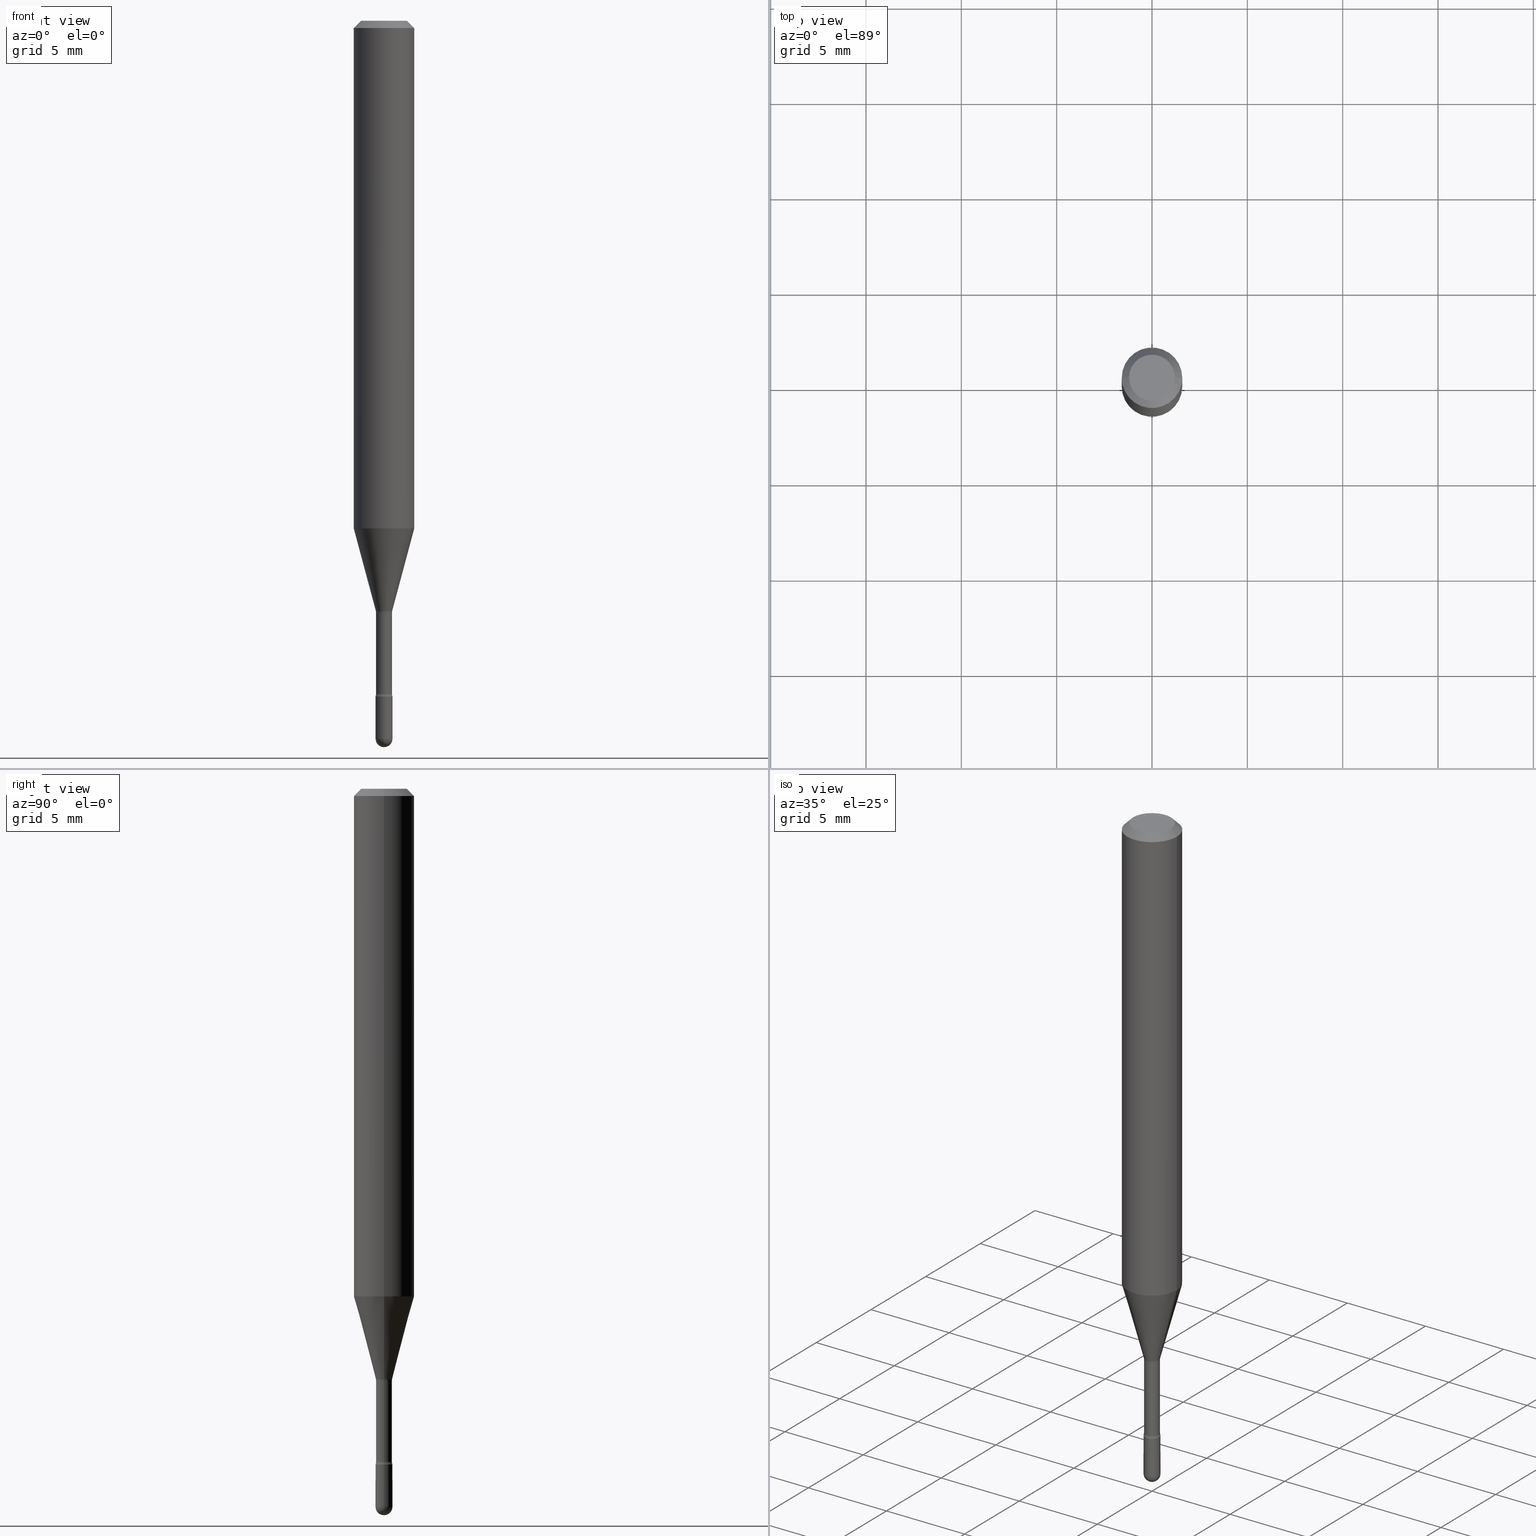
[diagram: canonical four-view strip — front | top / right | iso, engineering-drawing reading convention]
A machine part, canonical four-view strip (front | top / right | iso — engineering-drawing reading convention). The complete STEP part file that produces these views, byte-faithful:
ISO-10303-21;
HEADER;
FILE_DESCRIPTION (( 'STEP AP203' ),
    '1' );
FILE_NAME ('09797.STEP',
    '2024-04-10T01:27:53',
    ( '' ),
    ( '' ),
    'SwSTEP 2.0',
    'SolidWorks 2023',
    '' );
FILE_SCHEMA (( 'CONFIG_CONTROL_DESIGN' ));
ENDSEC;

DATA;
#1 = CARTESIAN_POINT ( 'NONE',  ( 0.04749999999999999362, -4.035134999187581581E-16, -8.274703207154280181E-17 ) ) ;
#2 = ADVANCED_FACE ( 'NONE', ( #327 ), #126, .T. ) ;
#3 = APPROVAL_PERSON_ORGANIZATION ( #79, #436, #36 ) ;
#4 = CC_DESIGN_PERSON_AND_ORGANIZATION_ASSIGNMENT ( #212, #561, ( #183 ) ) ;
#5 = DIRECTION ( 'NONE',  ( 2.438088387897960049E-29, -3.491481338843145188E-15, -1.000000000000000000 ) ) ;
#6 = ORIENTED_EDGE ( 'NONE', *, *, #226, .T. ) ;
#7 = DIRECTION ( 'NONE',  ( -2.445468806185136597E-29, 3.491481338843145583E-15, 1.000000000000000000 ) ) ;
#8 = EDGE_LOOP ( 'NONE', ( #312, #129, #94, #104 ) ) ;
#9 = ADVANCED_FACE ( 'NONE', ( #516 ), #432, .F. ) ;
#10 = DIRECTION ( 'NONE',  ( 2.445468806185136597E-29, -3.491481338843145583E-15, -1.000000000000000000 ) ) ;
#11 = DESIGN_CONTEXT ( 'detailed design', #237, 'design' ) ;
#12 = ORIENTED_EDGE ( 'NONE', *, *, #66, .F. ) ;
#13 = CC_DESIGN_DATE_AND_TIME_ASSIGNMENT ( #210, #386, ( #507 ) ) ;
#14 = CIRCLE ( 'NONE', #308, 0.01750000000000000860 ) ;
#15 = CARTESIAN_POINT ( 'NONE',  ( -1.169113584055446105E-44, 1.669184350826100908E-30, 4.780733988912460139E-16 ) ) ;
#16 = CIRCLE ( 'NONE', #33, 0.01645000000000006180 ) ;
#17 = ORIENTED_EDGE ( 'NONE', *, *, #75, .T. ) ;
#18 = VERTEX_POINT ( 'NONE', #111 ) ;
#19 = DIRECTION ( 'NONE',  ( -2.445468806185136597E-29, 3.491481338843145583E-15, 1.000000000000000000 ) ) ;
#20 = VERTEX_POINT ( 'NONE', #65 ) ;
#21 = CARTESIAN_POINT ( 'NONE',  ( -0.01750000000000000167, 1.243449787580175444E-16, -8.608136407946085539E-31 ) ) ;
#22 = AXIS2_PLACEMENT_3D ( 'NONE', #482, #520, #392 ) ;
#23 = ORIENTED_EDGE ( 'NONE', *, *, #535, .F. ) ;
#24 = VECTOR ( 'NONE', #446, 39.37007874015748143 ) ;
#25 = DIRECTION ( 'NONE',  ( -2.445468806185136597E-29, 3.491481338843145583E-15, 1.000000000000000000 ) ) ;
#26 = DIRECTION ( 'NONE',  ( -2.445468806185136597E-29, 3.491481338843145583E-15, 1.000000000000000000 ) ) ;
#27 = DIRECTION ( 'NONE',  ( 1.000000000000000000, -6.982962677686267499E-15, 4.884662768193073002E-29 ) ) ;
#28 = CARTESIAN_POINT ( 'NONE',  ( -0.01644999999999999588, -4.442050083282912948E-15, -1.221974787463810941 ) ) ;
#29 = ADVANCED_FACE ( 'NONE', ( #411 ), #325, .T. ) ;
#30 = CC_DESIGN_DATE_AND_TIME_ASSIGNMENT ( #176, #345, ( #371 ) ) ;
#31 = ORIENTED_EDGE ( 'NONE', *, *, #46, .T. ) ;
#32 = AXIS2_PLACEMENT_3D ( 'NONE', #192, #93, #57 ) ;
#33 = AXIS2_PLACEMENT_3D ( 'NONE', #74, #64, #508 ) ;
#34 = CALENDAR_DATE ( 2024, 9, 4 ) ;
#35 = DIRECTION ( 'NONE',  ( -2.445468806185136877E-29, 3.491481338843145188E-15, 1.000000000000000000 ) ) ;
#36 = APPROVAL_ROLE ( '' ) ;
#37 = DIRECTION ( 'NONE',  ( -2.445468806185136597E-29, 3.491481338843145583E-15, 1.000000000000000000 ) ) ;
#38 = CALENDAR_DATE ( 2024, 9, 4 ) ;
#39 = CYLINDRICAL_SURFACE ( 'NONE', #116, 0.06250000000000000000 ) ;
#40 = ORIENTED_EDGE ( 'NONE', *, *, #481, .T. ) ;
#41 = AXIS2_PLACEMENT_3D ( 'NONE', #220, #525, #523 ) ;
#42 = AXIS2_PLACEMENT_3D ( 'NONE', #468, #120, #553 ) ;
#43 = FACE_OUTER_BOUND ( 'NONE', #230, .T. ) ;
#44 = CARTESIAN_POINT ( 'NONE',  ( 3.668203209277725232E-31, -5.237222008264747365E-17, -0.01500000000000008271 ) ) ;
#45 = ORIENTED_EDGE ( 'NONE', *, *, #555, .T. ) ;
#46 = EDGE_CURVE ( 'NONE', #58, #235, #546, .T. ) ;
#47 = CYLINDRICAL_SURFACE ( 'NONE', #343, 0.06250000000000000000 ) ;
#48 = ORIENTED_EDGE ( 'NONE', *, *, #359, .T. ) ;
#49 = CIRCLE ( 'NONE', #370, 0.01750000000000000167 ) ;
#50 = CIRCLE ( 'NONE', #233, 0.01499999999999995955 ) ;
#51 = CARTESIAN_POINT ( 'NONE',  ( 3.625407505169465251E-29, -5.176121084834963974E-15, -1.482500000000000151 ) ) ;
#52 = EDGE_LOOP ( 'NONE', ( #140, #383, #17, #396 ) ) ;
#53 = EDGE_CURVE ( 'NONE', #73, #228, #189, .T. ) ;
#54 = LINE ( 'NONE', #489, #512 ) ;
#55 = EDGE_CURVE ( 'NONE', #409, #119, #154, .T. ) ;
#56 = ORIENTED_EDGE ( 'NONE', *, *, #215, .T. ) ;
#57 = DIRECTION ( 'NONE',  ( -1.000000000000000000, 7.105427357600996337E-15, 0.000000000000000000 ) ) ;
#58 = VERTEX_POINT ( 'NONE', #28 ) ;
#59 = CIRCLE ( 'NONE', #32, 0.01499999999999998904 ) ;
#60 = FACE_OUTER_BOUND ( 'NONE', #263, .T. ) ;
#61 = VECTOR ( 'NONE', #115, 39.37007874015748143 ) ;
#62 = EDGE_CURVE ( 'NONE', #73, #235, #521, .T. ) ;
#63 = ORIENTED_EDGE ( 'NONE', *, *, #350, .T. ) ;
#64 = DIRECTION ( 'NONE',  ( -2.445468806185136597E-29, 3.491481338843145583E-15, 1.000000000000000000 ) ) ;
#65 = CARTESIAN_POINT ( 'NONE',  ( -0.06250000000000000000, -3.215468759739966983E-15, -1.048139060311453319 ) ) ;
#66 = EDGE_CURVE ( 'NONE', #153, #488, #443, .T. ) ;
#67 = CARTESIAN_POINT ( 'NONE',  ( -1.243449787579813061E-16, -0.01750000000000518155, -1.482500000000000151 ) ) ;
#68 = DIRECTION ( 'NONE',  ( 1.000000000000000000, -6.982962677686254089E-15, 0.000000000000000000 ) ) ;
#69 = DIMENSIONAL_EXPONENTS ( 1.000000000000000000, 0.000000000000000000, 0.000000000000000000, 0.000000000000000000, 0.000000000000000000, 0.000000000000000000, 0.000000000000000000 ) ;
#70 = DIRECTION ( 'NONE',  ( -2.445468806185136877E-29, 3.491481338843145188E-15, 1.000000000000000000 ) ) ;
#71 = CIRCLE ( 'NONE', #483, 0.06250000000000000000 ) ;
#72 = AXIS2_PLACEMENT_3D ( 'NONE', #339, #168, #484 ) ;
#73 = VERTEX_POINT ( 'NONE', #486 ) ;
#74 = CARTESIAN_POINT ( 'NONE',  ( 3.397946154556677144E-29, -4.851366559664184684E-15, -1.389486607215153491 ) ) ;
#75 = EDGE_CURVE ( 'NONE', #544, #413, #208, .T. ) ;
#76 = ORIENTED_EDGE ( 'NONE', *, *, #53, .F. ) ;
#77 = FACE_OUTER_BOUND ( 'NONE', #355, .T. ) ;
#78 = DIRECTION ( 'NONE',  ( 2.445468806185136597E-29, -3.491481338843145583E-15, -1.000000000000000000 ) ) ;
#79 = PERSON_AND_ORGANIZATION ( #139, #272 ) ;
#80 = FACE_OUTER_BOUND ( 'NONE', #358, .T. ) ;
#81 = APPROVAL_PERSON_ORGANIZATION ( #130, #378, #522 ) ;
#82 = MANIFOLD_SOLID_BREP ( 'Body-Move/Copy2[1]', #135 ) ;
#83 = DIRECTION ( 'NONE',  ( 1.000000000000000000, -6.982962677686266711E-15, 0.000000000000000000 ) ) ;
#84 = APPROVAL_STATUS ( 'not_yet_approved' ) ;
#85 = FACE_OUTER_BOUND ( 'NONE', #245, .T. ) ;
#86 = APPROVAL_ROLE ( '' ) ;
#87 = CARTESIAN_POINT ( 'NONE',  ( 0.01645000000000006180, -4.966236295712124352E-15, -1.389486607215153491 ) ) ;
#88 = AXIS2_PLACEMENT_3D ( 'NONE', #379, #25, #292 ) ;
#89 = CARTESIAN_POINT ( 'NONE',  ( -0.04749999999999999362, 3.578768372314208041E-16, -8.274703207154778150E-17 ) ) ;
#90 = ADVANCED_FACE ( 'NONE', ( #43 ), #414, .T. ) ;
#91 = DIRECTION ( 'NONE',  ( -1.000000000000000000, 6.982962677686266711E-15, 0.000000000000000000 ) ) ;
#92 = ORIENTED_EDGE ( 'NONE', *, *, #359, .F. ) ;
#93 = DIRECTION ( 'NONE',  ( 7.105427357601001859E-15, 1.000000000000000000, -3.491481338843145583E-15 ) ) ;
#94 = ORIENTED_EDGE ( 'NONE', *, *, #206, .F. ) ;
#95 = ADVANCED_FACE ( 'NONE', ( #258 ), #435, .T. ) ;
#96 = AXIS2_PLACEMENT_3D ( 'NONE', #330, #201, #509 ) ;
#97 = AXIS2_PLACEMENT_3D ( 'NONE', #442, #7, #186 ) ;
#98 = DIRECTION ( 'NONE',  ( -7.105427357601001859E-15, -1.000000000000000000, 0.000000000000000000 ) ) ;
#99 = ORIENTED_EDGE ( 'NONE', *, *, #350, .F. ) ;
#100 = EDGE_CURVE ( 'NONE', #409, #544, #518, .T. ) ;
#101 = CARTESIAN_POINT ( 'NONE',  ( 3.316907271900976096E-16, 0.04749999999999999362, 3.181781981480094004E-17 ) ) ;
#102 = ORIENTED_EDGE ( 'NONE', *, *, #476, .T. ) ;
#103 = FACE_OUTER_BOUND ( 'NONE', #270, .T. ) ;
#104 = ORIENTED_EDGE ( 'NONE', *, *, #555, .F. ) ;
#105 = CC_DESIGN_SECURITY_CLASSIFICATION ( #371, ( #183 ) ) ;
#106 = AXIS2_PLACEMENT_3D ( 'NONE', #289, #26, #203 ) ;
#107 = LINE ( 'NONE', #408, #444 ) ;
#108 = CONICAL_SURFACE ( 'NONE', #465, 0.06250000000000000000, 0.7853981633974483900 ) ;
#109 = ORIENTED_EDGE ( 'NONE', *, *, #461, .F. ) ;
#110 = DIRECTION ( 'NONE',  ( 1.000000000000000000, -6.982962677686248567E-15, 0.000000000000000000 ) ) ;
#111 = CARTESIAN_POINT ( 'NONE',  ( 0.01750000000000000513, -5.145570623120085689E-15, -1.482500000000000151 ) ) ;
#112 = DIRECTION ( 'NONE',  ( -2.445468806185136597E-29, 3.491481338843145583E-15, 1.000000000000000000 ) ) ;
#113 = EDGE_LOOP ( 'NONE', ( #92, #12, #257, #404 ) ) ;
#114 = EDGE_CURVE ( 'NONE', #73, #440, #387, .T. ) ;
#115 = DIRECTION ( 'NONE',  ( -2.445468806185136877E-29, 3.491481338843145188E-15, 1.000000000000000000 ) ) ;
#116 = AXIS2_PLACEMENT_3D ( 'NONE', #216, #390, #177 ) ;
#117 = CIRCLE ( 'NONE', #398, 0.01750000000000000860 ) ;
#118 = DIRECTION ( 'NONE',  ( 1.000000000000000000, -6.982962677686273021E-15, 0.000000000000000000 ) ) ;
#119 = VERTEX_POINT ( 'NONE', #89 ) ;
#120 = DIRECTION ( 'NONE',  ( -1.000000000000000000, 6.982962677686265922E-15, -4.883557194083112340E-29 ) ) ;
#121 = ORIENTED_EDGE ( 'NONE', *, *, #527, .F. ) ;
#122 = CARTESIAN_POINT ( 'NONE',  ( 0.01696111260566397425, -4.371386055272411165E-15, -1.218092501787273241 ) ) ;
#123 = CC_DESIGN_PERSON_AND_ORGANIZATION_ASSIGNMENT ( #301, #477, ( #371 ) ) ;
#124 = APPROVAL_DATE_TIME ( #519, #378 ) ;
#125 = DIRECTION ( 'NONE',  ( -2.445468806185136597E-29, 3.491481338843145583E-15, 1.000000000000000000 ) ) ;
#126 = CONICAL_SURFACE ( 'NONE', #406, 0.01696111260566397425, 0.2617993877991496299 ) ;
#127 = SECURITY_CLASSIFICATION_LEVEL ( 'unclassified' ) ;
#128 = DIRECTION ( 'NONE',  ( -2.445468806185136597E-29, 3.491481338843145583E-15, 1.000000000000000000 ) ) ;
#129 = ORIENTED_EDGE ( 'NONE', *, *, #317, .T. ) ;
#130 = PERSON_AND_ORGANIZATION ( #139, #272 ) ;
#131 = LINE ( 'NONE', #300, #198 ) ;
#132 = PERSON_AND_ORGANIZATION ( #139, #272 ) ;
#133 = EDGE_CURVE ( 'NONE', #20, #440, #290, .T. ) ;
#134 = DIRECTION ( 'NONE',  ( 1.000000000000000000, -6.982962677686265922E-15, 4.876176775795936353E-29 ) ) ;
#135 = CLOSED_SHELL ( 'NONE', ( #496, #452, #150, #179, #95 ) ) ;
#136 = CARTESIAN_POINT ( 'NONE',  ( -0.06250000000000000000, 4.440892098500642925E-16, 4.780733988912429571E-16 ) ) ;
#137 = APPROVAL_DATE_TIME ( #363, #255 ) ;
#138 = FACE_OUTER_BOUND ( 'NONE', #113, .T. ) ;
#139 = PERSON ( 'UNSPECIFIED', 'UNSPECIFIED', 'UNSPECIFIED', ('UNSPECIFIED'), ('UNSPECIFIED'), ('UNSPECIFIED') ) ;
#140 = ORIENTED_EDGE ( 'NONE', *, *, #55, .F. ) ;
#141 = SHAPE_DEFINITION_REPRESENTATION ( #266, #329 ) ;
#142 = DIRECTION ( 'NONE',  ( -1.000000000000000000, 7.105427357601001070E-15, -4.926315508542082329E-29 ) ) ;
#143 = ORIENTED_EDGE ( 'NONE', *, *, #376, .T. ) ;
#144 = AXIS2_PLACEMENT_3D ( 'NONE', #253, #128, #134 ) ;
#145 = CC_DESIGN_APPROVAL ( #378, ( #507 ) ) ;
#146 = CARTESIAN_POINT ( 'NONE',  ( 0.01750000000000000167, -4.992818314545698211E-15, -1.395000000000000018 ) ) ;
#147 = ORIENTED_EDGE ( 'NONE', *, *, #501, .T. ) ;
#148 = DIRECTION ( 'NONE',  ( 7.105427357601001859E-15, 1.000000000000000000, -3.491481338843145583E-15 ) ) ;
#149 = ORIENTED_EDGE ( 'NONE', *, *, #455, .T. ) ;
#150 = ADVANCED_FACE ( 'NONE', ( #560 ), #298, .T. ) ;
#151 = DIRECTION ( 'NONE',  ( -2.445468806185136877E-29, 3.491481338843145188E-15, 1.000000000000000000 ) ) ;
#152 = PRODUCT_RELATED_PRODUCT_CATEGORY ( 'detail', '', ( #373 ) ) ;
#153 = VERTEX_POINT ( 'NONE', #87 ) ;
#154 = CIRCLE ( 'NONE', #106, 0.04749999999999999362 ) ;
#155 = CARTESIAN_POINT ( 'NONE',  ( 2.988301224687461483E-29, -4.266502166966714459E-15, -1.221974787463810941 ) ) ;
#156 = AXIS2_PLACEMENT_3D ( 'NONE', #246, #194, #515 ) ;
#157 = EDGE_LOOP ( 'NONE', ( #450, #547, #503, #56 ) ) ;
#158 = CARTESIAN_POINT ( 'NONE',  ( 3.397946154556677144E-29, -4.851366559664184684E-15, -1.389486607215153491 ) ) ;
#159 = ORIENTED_EDGE ( 'NONE', *, *, #219, .T. ) ;
#160 = DIRECTION ( 'NONE',  ( 1.000000000000000000, -6.982962677686248567E-15, 0.000000000000000000 ) ) ;
#161 = CARTESIAN_POINT ( 'NONE',  ( 3.668203209277725232E-31, -5.237222008264747365E-17, -0.01500000000000008271 ) ) ;
#162 = EDGE_LOOP ( 'NONE', ( #63, #495 ) ) ;
#163 = DIRECTION ( 'NONE',  ( -2.445468806185136877E-29, 3.491481338843145188E-15, 1.000000000000000000 ) ) ;
#164 = TOROIDAL_SURFACE ( 'NONE', #473, 0.03144999999999999185, 0.01499999999999998904 ) ;
#165 = AXIS2_PLACEMENT_3D ( 'NONE', #545, #326, #505 ) ;
#166 = ORIENTED_EDGE ( 'NONE', *, *, #55, .T. ) ;
#167 = CARTESIAN_POINT ( 'NONE',  ( 3.668203209277725232E-31, -5.237222008264747365E-17, -0.01500000000000008271 ) ) ;
#168 = DIRECTION ( 'NONE',  ( 0.000000000000000000, 0.000000000000000000, 1.000000000000000000 ) ) ;
#169 = ADVANCED_FACE ( 'NONE', ( #80 ), #164, .F. ) ;
#170 = DIRECTION ( 'NONE',  ( 1.000000000000000000, -6.982962677686266711E-15, 0.000000000000000000 ) ) ;
#171 = PERSON_AND_ORGANIZATION_ROLE ( 'design_supplier' ) ;
#172 = DIRECTION ( 'NONE',  ( 1.000000000000000000, -6.982962677686248567E-15, 0.000000000000000000 ) ) ;
#173 = AXIS2_PLACEMENT_3D ( 'NONE', #558, #238, #506 ) ;
#174 = TOROIDAL_SURFACE ( 'NONE', #528, 0.03145000000000002655, 0.01499999999999996128 ) ;
#175 = CIRCLE ( 'NONE', #316, 0.01750000000000000167 ) ;
#176 = DATE_AND_TIME ( #38, #335 ) ;
#177 = DIRECTION ( 'NONE',  ( 1.000000000000000000, -6.982962677686266711E-15, 4.852736867747366207E-29 ) ) ;
#178 = EDGE_CURVE ( 'NONE', #488, #58, #131, .T. ) ;
#179 = ADVANCED_FACE ( 'NONE', ( #564 ), #562, .T. ) ;
#180 = DIRECTION ( 'NONE',  ( 1.000000000000000000, -6.982962677686248567E-15, 0.000000000000000000 ) ) ;
#181 = FACE_OUTER_BOUND ( 'NONE', #540, .T. ) ;
#182 = AXIS2_PLACEMENT_3D ( 'NONE', #167, #305, #170 ) ;
#183 = PRODUCT_DEFINITION_FORMATION_WITH_SPECIFIED_SOURCE ( 'ANY', '', #373, .NOT_KNOWN. ) ;
#184 = CARTESIAN_POINT ( 'NONE',  ( -0.01750000000000000167, -4.899023797502559247E-15, -1.395000000000000018 ) ) ;
#185 = ORIENTED_EDGE ( 'NONE', *, *, #393, .F. ) ;
#186 = DIRECTION ( 'NONE',  ( 1.000000000000000000, -6.982962677686275388E-15, 4.883557194083115704E-29 ) ) ;
#187 = ORIENTED_EDGE ( 'NONE', *, *, #479, .T. ) ;
#188 = ORIENTED_EDGE ( 'NONE', *, *, #178, .T. ) ;
#189 = CIRCLE ( 'NONE', #96, 0.01696111260566397425 ) ;
#190 = VECTOR ( 'NONE', #451, 39.37007874015748143 ) ;
#191 = CALENDAR_DATE ( 2024, 9, 4 ) ;
#192 = CARTESIAN_POINT ( 'NONE',  ( -0.03144999999999999185, -4.043036476570163107E-15, -1.221974787463810941 ) ) ;
#193 = EDGE_LOOP ( 'NONE', ( #369, #102, #499, #407 ) ) ;
#194 = DIRECTION ( 'NONE',  ( -2.445468806185136597E-29, 3.491481338843145583E-15, 1.000000000000000000 ) ) ;
#195 = EDGE_LOOP ( 'NONE', ( #6, #551, #99, #463, #365 ) ) ;
#196 = FACE_OUTER_BOUND ( 'NONE', #399, .T. ) ;
#197 = EDGE_LOOP ( 'NONE', ( #121, #322, #31, #366 ) ) ;
#198 = VECTOR ( 'NONE', #35, 39.37007874015748143 ) ;
#199 = LINE ( 'NONE', #334, #200 ) ;
#200 = VECTOR ( 'NONE', #151, 39.37007874015748143 ) ;
#201 = DIRECTION ( 'NONE',  ( -2.445468806185136597E-29, 3.491481338843145583E-15, 1.000000000000000000 ) ) ;
#202 = CARTESIAN_POINT ( 'NONE',  ( 2.978807216168789301E-29, -4.252947238975025450E-15, -1.218092501787273241 ) ) ;
#203 = DIRECTION ( 'NONE',  ( 1.000000000000000000, -6.982962677686267499E-15, 4.884662768193073002E-29 ) ) ;
#204 = DIRECTION ( 'NONE',  ( 1.000000000000000000, -6.982962677686275388E-15, 4.883557194083115704E-29 ) ) ;
#205 = ORIENTED_EDGE ( 'NONE', *, *, #215, .F. ) ;
#206 = EDGE_CURVE ( 'NONE', #18, #319, #314, .T. ) ;
#207 = LENGTH_MEASURE_WITH_UNIT ( LENGTH_MEASURE( 0.02539999999999999897 ), #391 );
#208 = CIRCLE ( 'NONE', #182, 0.06250000000000000000 ) ;
#209 = DIRECTION ( 'NONE',  ( -2.445468806185136597E-29, 3.491481338843145583E-15, 1.000000000000000000 ) ) ;
#210 = DATE_AND_TIME ( #557, #353 ) ;
#211 = CARTESIAN_POINT ( 'NONE',  ( 3.625407505169465251E-29, -5.176121084834963974E-15, -1.482500000000000151 ) ) ;
#212 = PERSON_AND_ORGANIZATION ( #139, #272 ) ;
#213 = DIRECTION ( 'NONE',  ( 0.2588190451025209615, 1.565188264969624926E-15, 0.9659258262890682012 ) ) ;
#214 = COORDINATED_UNIVERSAL_TIME_OFFSET ( 5, 0, .BEHIND. ) ;
#215 = EDGE_CURVE ( 'NONE', #413, #544, #71, .T. ) ;
#216 = CARTESIAN_POINT ( 'NONE',  ( -1.169113584055446105E-44, 1.669184350826100908E-30, 4.780733988912460139E-16 ) ) ;
#217 = AXIS2_PLACEMENT_3D ( 'NONE', #211, #526, #221 ) ;
#218 = AXIS2_PLACEMENT_3D ( 'NONE', #466, #19, #27 ) ;
#219 = EDGE_CURVE ( 'NONE', #295, #423, #49, .T. ) ;
#220 = CARTESIAN_POINT ( 'NONE',  ( 2.563191376535860967E-29, -3.659557969590029993E-15, -1.048139060311453319 ) ) ;
#221 = DIRECTION ( 'NONE',  ( 6.982962677686265922E-15, 1.000000000000000000, 0.000000000000000000 ) ) ;
#222 = CARTESIAN_POINT ( 'NONE',  ( 3.411428984628265351E-29, -4.870616467686188228E-15, -1.395000000000000018 ) ) ;
#223 = EDGE_LOOP ( 'NONE', ( #23, #276, #45, #187, #324 ) ) ;
#224 = AXIS2_PLACEMENT_3D ( 'NONE', #293, #467, #437 ) ;
#225 = CC_DESIGN_APPROVAL ( #436, ( #183 ) ) ;
#226 = EDGE_CURVE ( 'NONE', #319, #249, #282, .T. ) ;
#227 = DIRECTION ( 'NONE',  ( 6.982962677686265922E-15, 1.000000000000000000, 0.000000000000000000 ) ) ;
#228 = VERTEX_POINT ( 'NONE', #302 ) ;
#229 = CARTESIAN_POINT ( 'NONE',  ( -0.03145000000000002655, -4.627900869267633332E-15, -1.389486607215153491 ) ) ;
#230 = EDGE_LOOP ( 'NONE', ( #532, #514, #377, #303 ) ) ;
#231 = CARTESIAN_POINT ( 'NONE',  ( 1.222018468595459501E-16, 0.01749999999999483219, -1.482500000000000151 ) ) ;
#232 = ORIENTED_EDGE ( 'NONE', *, *, #317, .F. ) ;
#233 = AXIS2_PLACEMENT_3D ( 'NONE', #229, #148, #364 ) ;
#234 = PLANE ( 'NONE',  #539 ) ;
#235 = VERTEX_POINT ( 'NONE', #478 ) ;
#236 = CYLINDRICAL_SURFACE ( 'NONE', #416, 0.01750000000000000167 ) ;
#237 = APPLICATION_CONTEXT ( 'configuration controlled 3d designs of mechanical parts and assemblies' ) ;
#238 = DIRECTION ( 'NONE',  ( -2.445468806185136597E-29, 3.491481338843145583E-15, 1.000000000000000000 ) ) ;
#239 = CARTESIAN_POINT ( 'NONE',  ( 0.06250000000000000000, -4.888073874380391431E-16, -0.01500000000000008271 ) ) ;
#240 = ORIENTED_EDGE ( 'NONE', *, *, #133, .F. ) ;
#241 = AXIS2_PLACEMENT_3D ( 'NONE', #161, #78, #247 ) ;
#242 = AXIS2_PLACEMENT_3D ( 'NONE', #244, #552, #160 ) ;
#243 = ADVANCED_FACE ( 'NONE', ( #85 ), #39, .T. ) ;
#244 = CARTESIAN_POINT ( 'NONE',  ( 3.625407505169465251E-29, -5.176121084834963974E-15, -1.482500000000000151 ) ) ;
#245 = EDGE_LOOP ( 'NONE', ( #493, #447, #147, #205 ) ) ;
#246 = CARTESIAN_POINT ( 'NONE',  ( 2.563191376535860967E-29, -3.659557969590029993E-15, -1.048139060311453319 ) ) ;
#247 = DIRECTION ( 'NONE',  ( -1.000000000000000000, 6.982962677686266711E-15, 0.000000000000000000 ) ) ;
#248 = PERSON_AND_ORGANIZATION ( #139, #272 ) ;
#249 = VERTEX_POINT ( 'NONE', #346 ) ;
#250 = CC_DESIGN_PERSON_AND_ORGANIZATION_ASSIGNMENT ( #563, #171, ( #183 ) ) ;
#251 = COORDINATED_UNIVERSAL_TIME_OFFSET ( 5, 0, .BEHIND. ) ;
#252 = AXIS2_PLACEMENT_3D ( 'NONE', #202, #323, #412 ) ;
#253 = CARTESIAN_POINT ( 'NONE',  ( 0.000000000000000000, 0.000000000000000000, 0.000000000000000000 ) ) ;
#254 = COORDINATED_UNIVERSAL_TIME_OFFSET ( 5, 0, .BEHIND. ) ;
#255 = APPROVAL ( #480, 'UNSPECIFIED' ) ;
#256 = DIRECTION ( 'NONE',  ( -2.445468806185136597E-29, 3.491481338843145583E-15, 1.000000000000000000 ) ) ;
#257 = ORIENTED_EDGE ( 'NONE', *, *, #448, .T. ) ;
#258 = FACE_OUTER_BOUND ( 'NONE', #223, .T. ) ;
#259 = AXIS2_PLACEMENT_3D ( 'NONE', #15, #321, #529 ) ;
#260 = CIRCLE ( 'NONE', #156, 0.06250000000000000000 ) ;
#261 = CARTESIAN_POINT ( 'NONE',  ( 2.988301224687461483E-29, -4.266502166966715248E-15, -1.221974787463810941 ) ) ;
#262 = UNCERTAINTY_MEASURE_WITH_UNIT (LENGTH_MEASURE( 1.000000000000000082E-05 ), #426, 'distance_accuracy_value', 'NONE');
#263 = EDGE_LOOP ( 'NONE', ( #536, #281 ) ) ;
#264 = MANIFOLD_SOLID_BREP ( 'Body-Move/Copy2[2]', #341 ) ;
#265 = CYLINDRICAL_SURFACE ( 'NONE', #259, 0.01645000000000003057 ) ;
#266 = PRODUCT_DEFINITION_SHAPE ( 'NONE', 'NONE',  #507 ) ;
#267 = ORIENTED_EDGE ( 'NONE', *, *, #226, .F. ) ;
#268 = CC_DESIGN_PERSON_AND_ORGANIZATION_ASSIGNMENT ( #248, #471, ( #373 ) ) ;
#269 = PLANE ( 'NONE',  #291 ) ;
#270 = EDGE_LOOP ( 'NONE', ( #315, #188, #109, #453 ) ) ;
#271 = VECTOR ( 'NONE', #213, 39.37007874015748143 ) ;
#272 = ORGANIZATION ( 'UNSPECIFIED', 'UNSPECIFIED', '' ) ;
#273 = APPROVAL_PERSON_ORGANIZATION ( #304, #255, #86 ) ;
#274 = COORDINATED_UNIVERSAL_TIME_OFFSET ( 5, 0, .BEHIND. ) ;
#275 = FACE_OUTER_BOUND ( 'NONE', #157, .T. ) ;
#276 = ORIENTED_EDGE ( 'NONE', *, *, #533, .T. ) ;
#277 = ADVANCED_FACE ( 'NONE', ( #103 ), #265, .T. ) ;
#278 = DIRECTION ( 'NONE',  ( 1.000000000000000000, -6.982962677686287221E-15, 0.000000000000000000 ) ) ;
#279 = ORIENTED_EDGE ( 'NONE', *, *, #75, .F. ) ;
#280 = DIRECTION ( 'NONE',  ( -2.445468806185136597E-29, 3.491481338843145583E-15, 1.000000000000000000 ) ) ;
#281 = ORIENTED_EDGE ( 'NONE', *, *, #219, .F. ) ;
#282 = CIRCLE ( 'NONE', #537, 0.01750000000000000167 ) ;
#283 = LOCAL_TIME ( 21, 27, 53.00000000000000000, #214 ) ;
#284 = DIRECTION ( 'NONE',  ( 1.000000000000000000, -6.982962677686248567E-15, 0.000000000000000000 ) ) ;
#285 = CARTESIAN_POINT ( 'NONE',  ( 2.978807216168789301E-29, -4.252947238975025450E-15, -1.218092501787273241 ) ) ;
#286 = LINE ( 'NONE', #21, #485 ) ;
#287 = CARTESIAN_POINT ( 'NONE',  ( 2.988301224687461483E-29, -4.266502166966714459E-15, -1.221974787463810941 ) ) ;
#288 = CARTESIAN_POINT ( 'NONE',  ( 0.000000000000000000, 0.000000000000000000, 0.000000000000000000 ) ) ;
#289 = CARTESIAN_POINT ( 'NONE',  ( 2.023552857353652888E-45, -2.889097183224559242E-31, -8.274703207154537794E-17 ) ) ;
#290 = CIRCLE ( 'NONE', #41, 0.06250000000000000000 ) ;
#291 = AXIS2_PLACEMENT_3D ( 'NONE', #101, #5, #354 ) ;
#292 = DIRECTION ( 'NONE',  ( 1.000000000000000000, -6.982962677686248567E-15, 0.000000000000000000 ) ) ;
#293 = CARTESIAN_POINT ( 'NONE',  ( 3.397946154556677144E-29, -4.851366559664184684E-15, -1.389486607215153491 ) ) ;
#294 = DIRECTION ( 'NONE',  ( -2.445468806185136597E-29, 3.491481338843145583E-15, 1.000000000000000000 ) ) ;
#295 = VERTEX_POINT ( 'NONE', #400 ) ;
#296 = MECHANICAL_CONTEXT ( 'NONE', #402, 'mechanical' ) ;
#297 = EDGE_CURVE ( 'NONE', #119, #413, #54, .T. ) ;
#298 = PLANE ( 'NONE',  #22 ) ;
#299 = COORDINATED_UNIVERSAL_TIME_OFFSET ( 5, 0, .BEHIND. ) ;
#300 = CARTESIAN_POINT ( 'NONE',  ( -0.01645000000000003057, 1.168842800325383741E-16, 4.780733988912453237E-16 ) ) ;
#301 = PERSON_AND_ORGANIZATION ( #139, #272 ) ;
#302 = CARTESIAN_POINT ( 'NONE',  ( -0.01696111260566397425, -3.673950022595677851E-15, -1.218092501787273241 ) ) ;
#303 = ORIENTED_EDGE ( 'NONE', *, *, #114, .F. ) ;
#304 = PERSON_AND_ORGANIZATION ( #139, #272 ) ;
#305 = DIRECTION ( 'NONE',  ( -2.445468806185136597E-29, 3.491481338843145583E-15, 1.000000000000000000 ) ) ;
#306 =( NAMED_UNIT ( * ) PLANE_ANGLE_UNIT ( ) SI_UNIT ( $, .RADIAN. ) );
#307 = CARTESIAN_POINT ( 'NONE',  ( 2.978807216168789301E-29, -4.252947238975025450E-15, -1.218092501787273241 ) ) ;
#308 = AXIS2_PLACEMENT_3D ( 'NONE', #51, #405, #227 ) ;
#309 = CIRCLE ( 'NONE', #242, 0.01750000000000000167 ) ;
#310 = DIRECTION ( 'NONE',  ( 1.000000000000000000, -6.982962677686265922E-15, 4.876176775795935793E-29 ) ) ;
#311 = LINE ( 'NONE', #136, #190 ) ;
#312 = ORIENTED_EDGE ( 'NONE', *, *, #356, .F. ) ;
#313 = CARTESIAN_POINT ( 'NONE',  ( 0.01749999999999997391, -4.992818314545698211E-15, -1.395000000000000018 ) ) ;
#314 = CIRCLE ( 'NONE', #342, 0.01750000000000000167 ) ;
#315 = ORIENTED_EDGE ( 'NONE', *, *, #66, .T. ) ;
#316 = AXIS2_PLACEMENT_3D ( 'NONE', #458, #328, #284 ) ;
#317 = EDGE_CURVE ( 'NONE', #470, #319, #14, .T. ) ;
#318 = CARTESIAN_POINT ( 'NONE',  ( 1.222018468595437807E-16, 0.01749999999999513056, -1.395000000000000018 ) ) ;
#319 = VERTEX_POINT ( 'NONE', #231 ) ;
#320 = EDGE_CURVE ( 'NONE', #228, #58, #59, .T. ) ;
#321 = DIRECTION ( 'NONE',  ( -2.445468806185136597E-29, 3.491481338843145583E-15, 1.000000000000000000 ) ) ;
#322 = ORIENTED_EDGE ( 'NONE', *, *, #320, .T. ) ;
#323 = DIRECTION ( 'NONE',  ( -2.445468806185136597E-29, 3.491481338843145583E-15, 1.000000000000000000 ) ) ;
#324 = ORIENTED_EDGE ( 'NONE', *, *, #460, .F. ) ;
#325 = CONICAL_SURFACE ( 'NONE', #241, 0.06250000000000000000, 0.7853981633974483900 ) ;
#326 = DIRECTION ( 'NONE',  ( -2.445468806185136597E-29, 3.491481338843145583E-15, 1.000000000000000000 ) ) ;
#327 = FACE_OUTER_BOUND ( 'NONE', #445, .T. ) ;
#328 = DIRECTION ( 'NONE',  ( -2.445468806185136597E-29, 3.491481338843145583E-15, 1.000000000000000000 ) ) ;
#329 = ADVANCED_BREP_SHAPE_REPRESENTATION ( '09797', ( #82, #264, #72 ), #454 ) ;
#330 = CARTESIAN_POINT ( 'NONE',  ( 2.978807216168789301E-29, -4.252947238975025450E-15, -1.218092501787273241 ) ) ;
#331 = LINE ( 'NONE', #510, #61 ) ;
#332 = CARTESIAN_POINT ( 'NONE',  ( 0.03144999999999999185, -4.486116343179948285E-15, -1.221974787463810941 ) ) ;
#333 = CIRCLE ( 'NONE', #252, 0.01696111260566397425 ) ;
#334 = CARTESIAN_POINT ( 'NONE',  ( 0.06250000000000000000, -4.364351673553899931E-16, 4.780733988912490708E-16 ) ) ;
#335 = LOCAL_TIME ( 21, 27, 53.00000000000000000, #254 ) ;
#336 = DIRECTION ( 'NONE',  ( 1.000000000000000000, -6.982962677686286432E-15, 0.000000000000000000 ) ) ;
#337 = ORIENTED_EDGE ( 'NONE', *, *, #62, .T. ) ;
#338 = DIRECTION ( 'NONE',  ( 0.7071067811865475727, -7.319954787623256045E-15, -0.7071067811865474617 ) ) ;
#339 = CARTESIAN_POINT ( 'NONE',  ( 0.000000000000000000, 0.000000000000000000, 0.000000000000000000 ) ) ;
#340 = DIRECTION ( 'NONE',  ( 1.000000000000000000, -6.982962677686286432E-15, 0.000000000000000000 ) ) ;
#341 = CLOSED_SHELL ( 'NONE', ( #9, #277, #497, #29, #347, #90, #2, #243, #368, #417, #394, #441, #531, #169 ) ) ;
#342 = AXIS2_PLACEMENT_3D ( 'NONE', #566, #475, #180 ) ;
#343 = AXIS2_PLACEMENT_3D ( 'NONE', #491, #280, #439 ) ;
#344 = CARTESIAN_POINT ( 'NONE',  ( 0.06250000000000000000, -4.811533449433681963E-16, -0.01500000000000008271 ) ) ;
#345 = DATE_TIME_ROLE ( 'classification_date' ) ;
#346 = CARTESIAN_POINT ( 'NONE',  ( -0.01750000000000000513, -4.899023797502559247E-15, -1.482500000000000151 ) ) ;
#347 = ADVANCED_FACE ( 'NONE', ( #534 ), #47, .T. ) ;
#348 = APPLICATION_PROTOCOL_DEFINITION ( 'international standard', 'config_control_design', 1994, #402 ) ;
#349 = CARTESIAN_POINT ( 'NONE',  ( 3.411428984628265351E-29, -4.870616467686188228E-15, -1.395000000000000018 ) ) ;
#350 = EDGE_CURVE ( 'NONE', #361, #380, #362, .T. ) ;
#351 = CC_DESIGN_PERSON_AND_ORGANIZATION_ASSIGNMENT ( #132, #382, ( #507 ) ) ;
#352 = CARTESIAN_POINT ( 'NONE',  ( -0.01696111260566397425, -4.132431285451389114E-15, -1.218092501787273241 ) ) ;
#353 = LOCAL_TIME ( 21, 27, 53.00000000000000000, #299 ) ;
#354 = DIRECTION ( 'NONE',  ( -1.000000000000000000, 6.982962677686265922E-15, -4.876176775795935793E-29 ) ) ;
#355 = EDGE_LOOP ( 'NONE', ( #232, #457, #401, #267 ) ) ;
#356 = EDGE_CURVE ( 'NONE', #470, #542, #117, .T. ) ;
#357 = CARTESIAN_POINT ( 'NONE',  ( 0.03145000000000002655, -5.070980735877417722E-15, -1.389486607215153491 ) ) ;
#358 = EDGE_LOOP ( 'NONE', ( #421, #76, #337, #490 ) ) ;
#359 = EDGE_CURVE ( 'NONE', #488, #295, #50, .T. ) ;
#360 = CARTESIAN_POINT ( 'NONE',  ( 3.625407505169465251E-29, -5.176121084834963974E-15, -1.482500000000000151 ) ) ;
#361 = VERTEX_POINT ( 'NONE', #146 ) ;
#362 = CIRCLE ( 'NONE', #433, 0.01750000000000000167 ) ;
#363 = DATE_AND_TIME ( #191, #549 ) ;
#364 = DIRECTION ( 'NONE',  ( -1.000000000000000000, 7.105427357601009747E-15, 0.000000000000000000 ) ) ;
#365 = ORIENTED_EDGE ( 'NONE', *, *, #206, .T. ) ;
#366 = ORIENTED_EDGE ( 'NONE', *, *, #62, .F. ) ;
#367 = CYLINDRICAL_SURFACE ( 'NONE', #165, 0.01645000000000003057 ) ;
#368 = ADVANCED_FACE ( 'NONE', ( #275 ), #108, .T. ) ;
#369 = ORIENTED_EDGE ( 'NONE', *, *, #178, .F. ) ;
#370 = AXIS2_PLACEMENT_3D ( 'NONE', #349, #256, #429 ) ;
#371 = SECURITY_CLASSIFICATION ( '', '', #127 ) ;
#372 = FACE_OUTER_BOUND ( 'NONE', #195, .T. ) ;
#373 = PRODUCT ( '09797', '09797', '', ( #296 ) ) ;
#374 = ORIENTED_EDGE ( 'NONE', *, *, #476, .F. ) ;
#375 = CARTESIAN_POINT ( 'NONE',  ( 3.625407505169465251E-29, -5.176121084834963974E-15, -1.482500000000000151 ) ) ;
#376 = EDGE_CURVE ( 'NONE', #20, #413, #311, .T. ) ;
#377 = ORIENTED_EDGE ( 'NONE', *, *, #455, .F. ) ;
#378 = APPROVAL ( #84, 'UNSPECIFIED' ) ;
#379 = CARTESIAN_POINT ( 'NONE',  ( 3.411428984628265351E-29, -4.870616467686188228E-15, -1.395000000000000018 ) ) ;
#380 = VERTEX_POINT ( 'NONE', #184 ) ;
#381 = CIRCLE ( 'NONE', #88, 0.01750000000000000167 ) ;
#382 = PERSON_AND_ORGANIZATION_ROLE ( 'creator' ) ;
#383 = ORIENTED_EDGE ( 'NONE', *, *, #100, .T. ) ;
#384 = APPROVAL_DATE_TIME ( #430, #436 ) ;
#385 = DIRECTION ( 'NONE',  ( -2.445468806185136597E-29, 3.491481338843145583E-15, 1.000000000000000000 ) ) ;
#386 = DATE_TIME_ROLE ( 'creation_date' ) ;
#387 = LINE ( 'NONE', #122, #271 ) ;
#388 = AXIS2_PLACEMENT_3D ( 'NONE', #307, #125, #340 ) ;
#389 = AXIS2_PLACEMENT_3D ( 'NONE', #357, #403, #278 ) ;
#390 = DIRECTION ( 'NONE',  ( -2.445468806185136597E-29, 3.491481338843145583E-15, 1.000000000000000000 ) ) ;
#391 =( LENGTH_UNIT ( ) NAMED_UNIT ( * ) SI_UNIT ( $, .METRE. ) );
#392 = DIRECTION ( 'NONE',  ( 1.000000000000000000, -6.982962677686265922E-15, 4.876176775795935793E-29 ) ) ;
#393 = EDGE_CURVE ( 'NONE', #228, #20, #538, .T. ) ;
#394 = ADVANCED_FACE ( 'NONE', ( #60 ), #234, .F. ) ;
#395 = CARTESIAN_POINT ( 'NONE',  ( 3.625407505169465251E-29, -5.176121084834963974E-15, -1.482500000000000151 ) ) ;
#396 = ORIENTED_EDGE ( 'NONE', *, *, #297, .F. ) ;
#397 = CARTESIAN_POINT ( 'NONE',  ( -0.06250000000000000000, -1.411875884986276117E-15, -0.01500000000000008271 ) ) ;
#398 = AXIS2_PLACEMENT_3D ( 'NONE', #360, #142, #98 ) ;
#399 = EDGE_LOOP ( 'NONE', ( #374, #48, #159, #419 ) ) ;
#400 = CARTESIAN_POINT ( 'NONE',  ( -0.01749999999999997391, -4.746271488928170979E-15, -1.395000000000000018 ) ) ;
#401 = ORIENTED_EDGE ( 'NONE', *, *, #533, .F. ) ;
#402 = APPLICATION_CONTEXT ( 'configuration controlled 3d designs of mechanical parts and assemblies' ) ;
#403 = DIRECTION ( 'NONE',  ( -6.982962677686266711E-15, -1.000000000000000000, 3.491481338843145583E-15 ) ) ;
#404 = ORIENTED_EDGE ( 'NONE', *, *, #469, .T. ) ;
#405 = DIRECTION ( 'NONE',  ( 1.000000000000000000, -6.982962677686265922E-15, 4.883557194083112340E-29 ) ) ;
#406 = AXIS2_PLACEMENT_3D ( 'NONE', #285, #209, #336 ) ;
#407 = ORIENTED_EDGE ( 'NONE', *, *, #46, .F. ) ;
#408 = CARTESIAN_POINT ( 'NONE',  ( 0.01750000000000000167, -1.222018468595096625E-16, 8.533309357642889039E-31 ) ) ;
#409 = VERTEX_POINT ( 'NONE', #1 ) ;
#410 = DIRECTION ( 'NONE',  ( 1.000000000000000000, -6.982962677686265922E-15, 4.876176775795936353E-29 ) ) ;
#411 = FACE_OUTER_BOUND ( 'NONE', #52, .T. ) ;
#412 = DIRECTION ( 'NONE',  ( 1.000000000000000000, -6.982962677686286432E-15, 0.000000000000000000 ) ) ;
#413 = VERTEX_POINT ( 'NONE', #397 ) ;
#414 = CONICAL_SURFACE ( 'NONE', #388, 0.01696111260566397425, 0.2617993877991496299 ) ;
#415 = TOROIDAL_SURFACE ( 'NONE', #97, 0.03145000000000002655, 0.01499999999999996128 ) ;
#416 = AXIS2_PLACEMENT_3D ( 'NONE', #288, #294, #410 ) ;
#417 = ADVANCED_FACE ( 'NONE', ( #181 ), #269, .F. ) ;
#418 = DIRECTION ( 'NONE',  ( 1.000000000000000000, -6.982962677686254089E-15, 0.000000000000000000 ) ) ;
#419 = ORIENTED_EDGE ( 'NONE', *, *, #448, .F. ) ;
#420 = SPHERICAL_SURFACE ( 'NONE', #42, 0.01750000000000000860 ) ;
#421 = ORIENTED_EDGE ( 'NONE', *, *, #320, .F. ) ;
#422 = APPLICATION_PROTOCOL_DEFINITION ( 'international standard', 'config_control_design', 1994, #237 ) ;
#423 = VERTEX_POINT ( 'NONE', #313 ) ;
#424 = AXIS2_PLACEMENT_3D ( 'NONE', #332, #511, #118 ) ;
#425 = CIRCLE ( 'NONE', #548, 0.01644999999999999588 ) ;
#426 =( CONVERSION_BASED_UNIT ( 'INCH', #207 ) LENGTH_UNIT ( ) NAMED_UNIT ( #69 ) );
#427 = DIRECTION ( 'NONE',  ( 1.000000000000000000, -6.982962677686275388E-15, 4.883557194083115704E-29 ) ) ;
#428 = APPROVAL_STATUS ( 'not_yet_approved' ) ;
#429 = DIRECTION ( 'NONE',  ( 1.000000000000000000, -6.982962677686248567E-15, 0.000000000000000000 ) ) ;
#430 = DATE_AND_TIME ( #34, #474 ) ;
#431 = ORIENTED_EDGE ( 'NONE', *, *, #501, .F. ) ;
#432 = TOROIDAL_SURFACE ( 'NONE', #173, 0.03144999999999999185, 0.01499999999999998904 ) ;
#433 = AXIS2_PLACEMENT_3D ( 'NONE', #222, #541, #487 ) ;
#434 = CC_DESIGN_APPROVAL ( #255, ( #371 ) ) ;
#435 = CYLINDRICAL_SURFACE ( 'NONE', #144, 0.01750000000000000167 ) ;
#436 = APPROVAL ( #428, 'UNSPECIFIED' ) ;
#437 = DIRECTION ( 'NONE',  ( 1.000000000000000000, -6.982962677686256455E-15, 0.000000000000000000 ) ) ;
#438 = ORIENTED_EDGE ( 'NONE', *, *, #114, .T. ) ;
#439 = DIRECTION ( 'NONE',  ( 1.000000000000000000, -6.982962677686266711E-15, 4.852736867747366207E-29 ) ) ;
#440 = VERTEX_POINT ( 'NONE', #530 ) ;
#441 = ADVANCED_FACE ( 'NONE', ( #138 ), #415, .F. ) ;
#442 = CARTESIAN_POINT ( 'NONE',  ( 3.397946154556677144E-29, -4.851366559664184684E-15, -1.389486607215153491 ) ) ;
#443 = CIRCLE ( 'NONE', #224, 0.01645000000000006180 ) ;
#444 = VECTOR ( 'NONE', #163, 39.37007874015748143 ) ;
#445 = EDGE_LOOP ( 'NONE', ( #185, #554, #438, #240 ) ) ;
#446 = DIRECTION ( 'NONE',  ( -0.2588190451025209615, 5.211531920934547097E-15, 0.9659258262890682012 ) ) ;
#447 = ORIENTED_EDGE ( 'NONE', *, *, #133, .T. ) ;
#448 = EDGE_CURVE ( 'NONE', #153, #423, #513, .T. ) ;
#449 = DIRECTION ( 'NONE',  ( -0.7071067811865475727, 2.468850131082257455E-15, -0.7071067811865474617 ) ) ;
#450 = ORIENTED_EDGE ( 'NONE', *, *, #100, .F. ) ;
#451 = DIRECTION ( 'NONE',  ( -2.445468806185136877E-29, 3.491481338843145188E-15, 1.000000000000000000 ) ) ;
#452 = ADVANCED_FACE ( 'NONE', ( #77 ), #420, .T. ) ;
#453 = ORIENTED_EDGE ( 'NONE', *, *, #559, .F. ) ;
#454 =( GEOMETRIC_REPRESENTATION_CONTEXT ( 3 ) GLOBAL_UNCERTAINTY_ASSIGNED_CONTEXT ( ( #262 ) ) GLOBAL_UNIT_ASSIGNED_CONTEXT ( ( #426, #306, #565 ) ) REPRESENTATION_CONTEXT ( 'NONE', 'WORKASPACE' ) );
#455 = EDGE_CURVE ( 'NONE', #440, #20, #260, .T. ) ;
#456 = CARTESIAN_POINT ( 'NONE',  ( 3.668951479780737210E-29, -5.236150442315465727E-15, -1.500000000000000222 ) ) ;
#457 = ORIENTED_EDGE ( 'NONE', *, *, #356, .T. ) ;
#458 = CARTESIAN_POINT ( 'NONE',  ( 3.411428984628265351E-29, -4.870616467686188228E-15, -1.395000000000000018 ) ) ;
#459 = DIRECTION ( 'NONE',  ( -2.445468806185136597E-29, 3.491481338843145583E-15, 1.000000000000000000 ) ) ;
#460 = EDGE_CURVE ( 'NONE', #380, #361, #175, .T. ) ;
#461 = EDGE_CURVE ( 'NONE', #235, #58, #425, .T. ) ;
#462 = DIRECTION ( 'NONE',  ( -2.445468806185136597E-29, 3.491481338843145583E-15, 1.000000000000000000 ) ) ;
#463 = ORIENTED_EDGE ( 'NONE', *, *, #479, .F. ) ;
#464 = AXIS2_PLACEMENT_3D ( 'NONE', #287, #459, #68 ) ;
#465 = AXIS2_PLACEMENT_3D ( 'NONE', #498, #10, #91 ) ;
#466 = CARTESIAN_POINT ( 'NONE',  ( 2.023552857353652888E-45, -2.889097183224559242E-31, -8.274703207154537794E-17 ) ) ;
#467 = DIRECTION ( 'NONE',  ( -2.445468806185136597E-29, 3.491481338843145583E-15, 1.000000000000000000 ) ) ;
#468 = CARTESIAN_POINT ( 'NONE',  ( 3.625407505169465251E-29, -5.176121084834963974E-15, -1.482500000000000151 ) ) ;
#469 = EDGE_CURVE ( 'NONE', #423, #295, #381, .T. ) ;
#470 = VERTEX_POINT ( 'NONE', #456 ) ;
#471 = PERSON_AND_ORGANIZATION_ROLE ( 'design_owner' ) ;
#472 = DIRECTION ( 'NONE',  ( -2.445468806185136597E-29, 3.491481338843145583E-15, 1.000000000000000000 ) ) ;
#473 = AXIS2_PLACEMENT_3D ( 'NONE', #261, #385, #427 ) ;
#474 = LOCAL_TIME ( 21, 27, 53.00000000000000000, #251 ) ;
#475 = DIRECTION ( 'NONE',  ( -2.445468806185136597E-29, 3.491481338843145583E-15, 1.000000000000000000 ) ) ;
#476 = EDGE_CURVE ( 'NONE', #488, #153, #16, .T. ) ;
#477 = PERSON_AND_ORGANIZATION_ROLE ( 'classification_officer' ) ;
#478 = CARTESIAN_POINT ( 'NONE',  ( 0.01644999999999999588, -4.381371903014653338E-15, -1.221974787463810941 ) ) ;
#479 = EDGE_CURVE ( 'NONE', #18, #361, #107, .T. ) ;
#480 = APPROVAL_STATUS ( 'not_yet_approved' ) ;
#481 = EDGE_CURVE ( 'NONE', #119, #409, #504, .T. ) ;
#482 = CARTESIAN_POINT ( 'NONE',  ( 3.411428984628265351E-29, -4.870616467686188228E-15, -1.395000000000000018 ) ) ;
#483 = AXIS2_PLACEMENT_3D ( 'NONE', #44, #472, #83 ) ;
#484 = DIRECTION ( 'NONE',  ( 1.000000000000000000, 0.000000000000000000, 0.000000000000000000 ) ) ;
#485 = VECTOR ( 'NONE', #70, 39.37007874015748143 ) ;
#486 = CARTESIAN_POINT ( 'NONE',  ( 0.01696111260566397425, -4.371386055272411165E-15, -1.218092501787273241 ) ) ;
#487 = DIRECTION ( 'NONE',  ( 1.000000000000000000, -6.982962677686248567E-15, 0.000000000000000000 ) ) ;
#488 = VERTEX_POINT ( 'NONE', #543 ) ;
#489 = CARTESIAN_POINT ( 'NONE',  ( -0.06250000000000000000, 3.840629472727441958E-16, -0.01500000000000008271 ) ) ;
#490 = ORIENTED_EDGE ( 'NONE', *, *, #461, .T. ) ;
#491 = CARTESIAN_POINT ( 'NONE',  ( -1.169113584055446105E-44, 1.669184350826100908E-30, 4.780733988912460139E-16 ) ) ;
#492 = CIRCLE ( 'NONE', #556, 0.01750000000000000167 ) ;
#493 = ORIENTED_EDGE ( 'NONE', *, *, #376, .F. ) ;
#494 = DIRECTION ( 'NONE',  ( -2.438088387897960049E-29, 3.491481338843145188E-15, 1.000000000000000000 ) ) ;
#495 = ORIENTED_EDGE ( 'NONE', *, *, #460, .T. ) ;
#496 = ADVANCED_FACE ( 'NONE', ( #372 ), #236, .T. ) ;
#497 = ADVANCED_FACE ( 'NONE', ( #196 ), #174, .F. ) ;
#498 = CARTESIAN_POINT ( 'NONE',  ( 3.668203209277725232E-31, -5.237222008264747365E-17, -0.01500000000000008271 ) ) ;
#499 = ORIENTED_EDGE ( 'NONE', *, *, #559, .T. ) ;
#500 = FACE_OUTER_BOUND ( 'NONE', #193, .T. ) ;
#501 = EDGE_CURVE ( 'NONE', #440, #544, #199, .T. ) ;
#502 = VECTOR ( 'NONE', #338, 39.37007874015748143 ) ;
#503 = ORIENTED_EDGE ( 'NONE', *, *, #297, .T. ) ;
#504 = CIRCLE ( 'NONE', #218, 0.04749999999999999362 ) ;
#505 = DIRECTION ( 'NONE',  ( 1.000000000000000000, -6.982962677686266711E-15, 4.793737027410003602E-29 ) ) ;
#506 = DIRECTION ( 'NONE',  ( 1.000000000000000000, -6.982962677686275388E-15, 4.883557194083115704E-29 ) ) ;
#507 = PRODUCT_DEFINITION ( 'UNKNOWN', '', #183, #11 ) ;
#508 = DIRECTION ( 'NONE',  ( 1.000000000000000000, -6.982962677686256455E-15, 0.000000000000000000 ) ) ;
#509 = DIRECTION ( 'NONE',  ( 1.000000000000000000, -6.982962677686286432E-15, 0.000000000000000000 ) ) ;
#510 = CARTESIAN_POINT ( 'NONE',  ( 0.01645000000000003057, -1.148697360479376465E-16, 4.780733988912468028E-16 ) ) ;
#511 = DIRECTION ( 'NONE',  ( -6.982962677686266711E-15, -1.000000000000000000, 3.491481338843145583E-15 ) ) ;
#512 = VECTOR ( 'NONE', #449, 39.37007874015748143 ) ;
#513 = CIRCLE ( 'NONE', #389, 0.01499999999999995955 ) ;
#514 = ORIENTED_EDGE ( 'NONE', *, *, #393, .T. ) ;
#515 = DIRECTION ( 'NONE',  ( 1.000000000000000000, -6.982962677686270655E-15, 0.000000000000000000 ) ) ;
#516 = FACE_OUTER_BOUND ( 'NONE', #197, .T. ) ;
#517 = EDGE_LOOP ( 'NONE', ( #149, #143, #279, #431 ) ) ;
#518 = LINE ( 'NONE', #344, #502 ) ;
#519 = DATE_AND_TIME ( #524, #283 ) ;
#520 = DIRECTION ( 'NONE',  ( -2.438088387897960049E-29, 3.491481338843145188E-15, 1.000000000000000000 ) ) ;
#521 = CIRCLE ( 'NONE', #424, 0.01499999999999998904 ) ;
#522 = APPROVAL_ROLE ( '' ) ;
#523 = DIRECTION ( 'NONE',  ( 1.000000000000000000, -6.982962677686270655E-15, 0.000000000000000000 ) ) ;
#524 = CALENDAR_DATE ( 2024, 9, 4 ) ;
#525 = DIRECTION ( 'NONE',  ( -2.445468806185136597E-29, 3.491481338843145583E-15, 1.000000000000000000 ) ) ;
#526 = DIRECTION ( 'NONE',  ( -1.000000000000000000, 6.982962677686265922E-15, -4.883557194083112340E-29 ) ) ;
#527 = EDGE_CURVE ( 'NONE', #228, #73, #333, .T. ) ;
#528 = AXIS2_PLACEMENT_3D ( 'NONE', #158, #462, #204 ) ;
#529 = DIRECTION ( 'NONE',  ( 1.000000000000000000, -6.982962677686266711E-15, 4.793737027410003602E-29 ) ) ;
#530 = CARTESIAN_POINT ( 'NONE',  ( 0.06250000000000000000, -4.095993136945421663E-15, -1.048139060311453319 ) ) ;
#531 = ADVANCED_FACE ( 'NONE', ( #500 ), #367, .T. ) ;
#532 = ORIENTED_EDGE ( 'NONE', *, *, #53, .T. ) ;
#533 = EDGE_CURVE ( 'NONE', #249, #542, #492, .T. ) ;
#534 = FACE_OUTER_BOUND ( 'NONE', #517, .T. ) ;
#535 = EDGE_CURVE ( 'NONE', #249, #380, #286, .T. ) ;
#536 = ORIENTED_EDGE ( 'NONE', *, *, #469, .F. ) ;
#537 = AXIS2_PLACEMENT_3D ( 'NONE', #395, #37, #172 ) ;
#538 = LINE ( 'NONE', #352, #24 ) ;
#539 = AXIS2_PLACEMENT_3D ( 'NONE', #318, #494, #310 ) ;
#540 = EDGE_LOOP ( 'NONE', ( #40, #166 ) ) ;
#541 = DIRECTION ( 'NONE',  ( -2.445468806185136597E-29, 3.491481338843145583E-15, 1.000000000000000000 ) ) ;
#542 = VERTEX_POINT ( 'NONE', #67 ) ;
#543 = CARTESIAN_POINT ( 'NONE',  ( -0.01645000000000006180, -4.740376884279908534E-15, -1.389486607215153491 ) ) ;
#544 = VERTEX_POINT ( 'NONE', #239 ) ;
#545 = CARTESIAN_POINT ( 'NONE',  ( -1.169113584055446105E-44, 1.669184350826100908E-30, 4.780733988912460139E-16 ) ) ;
#546 = CIRCLE ( 'NONE', #464, 0.01644999999999999588 ) ;
#547 = ORIENTED_EDGE ( 'NONE', *, *, #481, .F. ) ;
#548 = AXIS2_PLACEMENT_3D ( 'NONE', #155, #112, #418 ) ;
#549 = LOCAL_TIME ( 21, 27, 53.00000000000000000, #274 ) ;
#550 = DIRECTION ( 'NONE',  ( -2.445468806185136597E-29, 3.491481338843145583E-15, 1.000000000000000000 ) ) ;
#551 = ORIENTED_EDGE ( 'NONE', *, *, #535, .T. ) ;
#552 = DIRECTION ( 'NONE',  ( -2.445468806185136597E-29, 3.491481338843145583E-15, 1.000000000000000000 ) ) ;
#553 = DIRECTION ( 'NONE',  ( 6.982962677686265922E-15, 1.000000000000000000, 0.000000000000000000 ) ) ;
#554 = ORIENTED_EDGE ( 'NONE', *, *, #527, .T. ) ;
#555 = EDGE_CURVE ( 'NONE', #542, #18, #309, .T. ) ;
#556 = AXIS2_PLACEMENT_3D ( 'NONE', #375, #550, #110 ) ;
#557 = CALENDAR_DATE ( 2024, 9, 4 ) ;
#558 = CARTESIAN_POINT ( 'NONE',  ( 2.988301224687461483E-29, -4.266502166966715248E-15, -1.221974787463810941 ) ) ;
#559 = EDGE_CURVE ( 'NONE', #153, #235, #331, .T. ) ;
#560 = FACE_OUTER_BOUND ( 'NONE', #162, .T. ) ;
#561 = PERSON_AND_ORGANIZATION_ROLE ( 'creator' ) ;
#562 = SPHERICAL_SURFACE ( 'NONE', #217, 0.01750000000000000860 ) ;
#563 = PERSON_AND_ORGANIZATION ( #139, #272 ) ;
#564 = FACE_OUTER_BOUND ( 'NONE', #8, .T. ) ;
#565 =( NAMED_UNIT ( * ) SI_UNIT ( $, .STERADIAN. ) SOLID_ANGLE_UNIT ( ) );
#566 = CARTESIAN_POINT ( 'NONE',  ( 3.625407505169465251E-29, -5.176121084834963974E-15, -1.482500000000000151 ) ) ;
ENDSEC;
END-ISO-10303-21;
